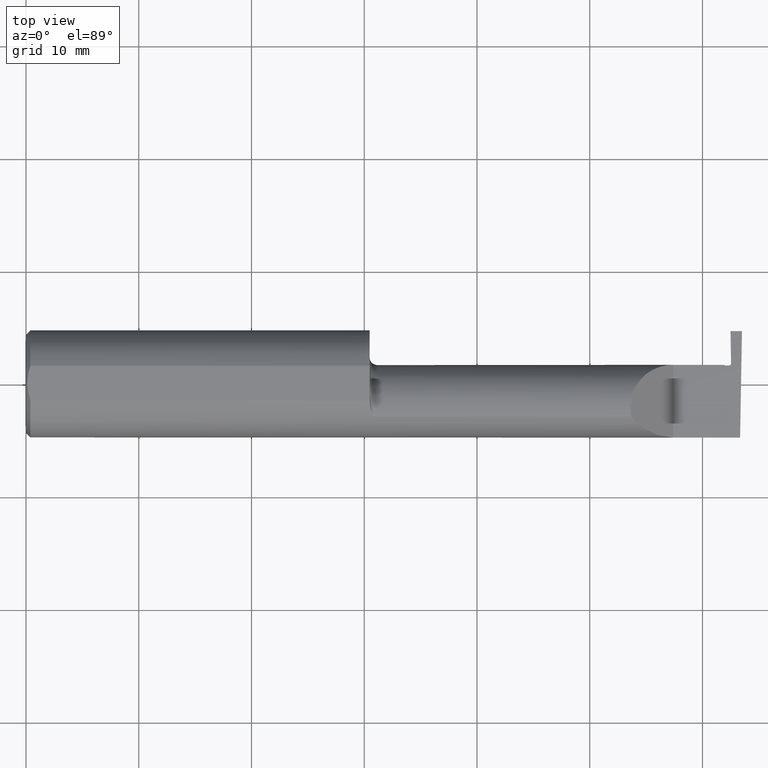
[diagram: clean part render]
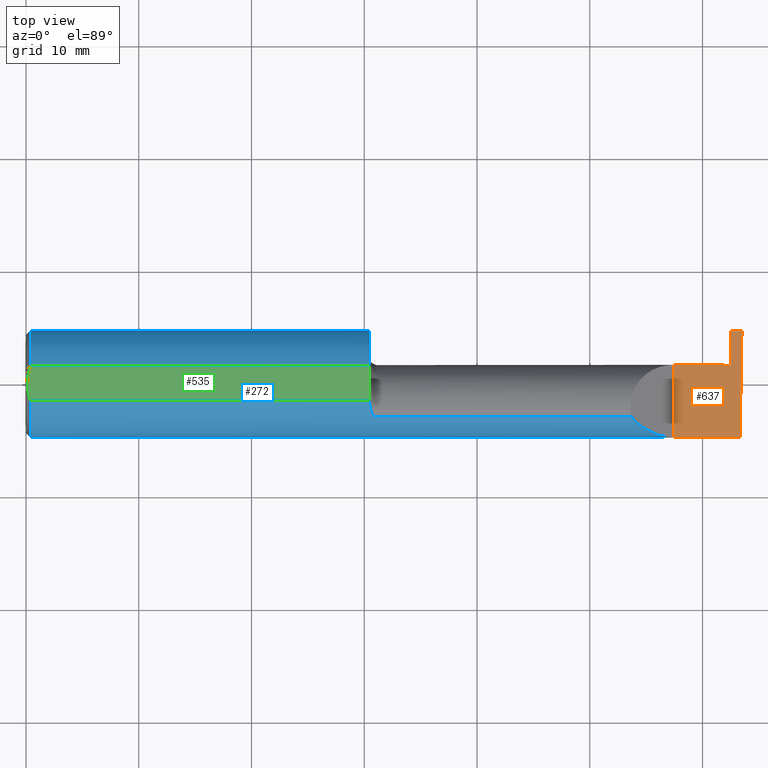
[diagram: same view with three faces highlighted in distinct colors, each labeled with its STEP entity id]
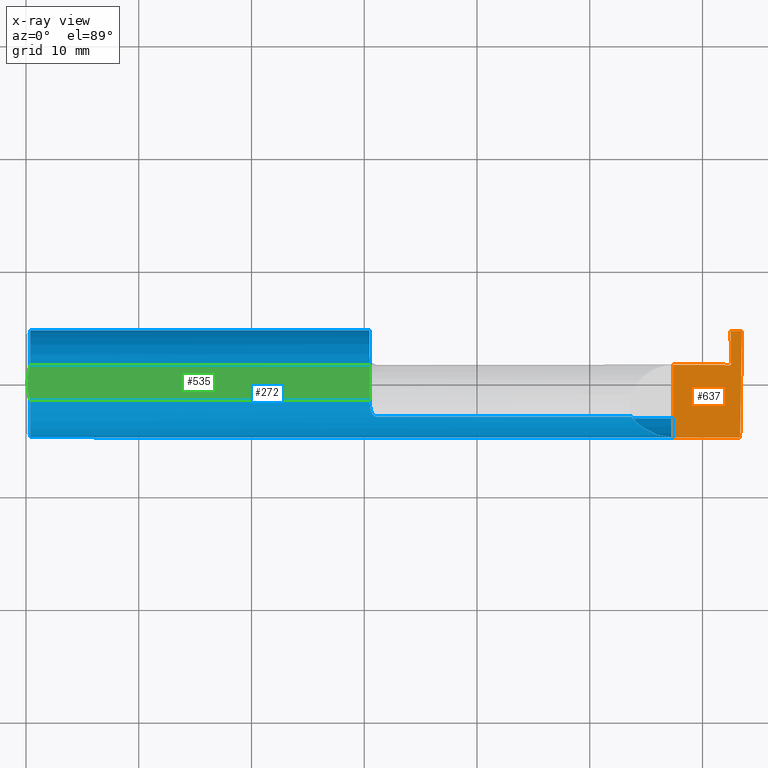
[diagram: x-ray of the same camera — body ghosted, the three highlighted faces saturated]
A machine part, top view with three faces highlighted in distinct colors.
The next image is the same camera in x-ray (body ghosted, the three faces saturated) — at least one of them is partly hidden behind the body in this view.
Their STEP definitions:

[orange] entity #637 — the highlighted planar face has unit normal (-0, 0, -1).
#2 = CARTESIAN_POINT ( 'NONE',  ( 2.461970289910105691, 0.07177216684492272736, -4.912318699649688234E-11 ) ) ;
#5 = B_SPLINE_CURVE_WITH_KNOTS ( 'NONE', 1,
 ( #380, #323 ),
 .UNSPECIFIED., .F., .F.,
 ( 2, 2 ),
 ( 0.000000000000000000, 0.0003802724437979160266 ),
 .UNSPECIFIED. ) ;
#18 = AXIS2_PLACEMENT_3D ( 'NONE', #775, #916, #706 ) ;
#24 = B_SPLINE_CURVE_WITH_KNOTS ( 'NONE', 1,
 ( #127, #640 ),
 .UNSPECIFIED., .F., .F.,
 ( 2, 2 ),
 ( 0.000000000000000000, 7.184204875932888475E-05 ),
 .UNSPECIFIED. ) ;
#30 = VECTOR ( 'NONE', #564, 39.37007874015748143 ) ;
#31 = EDGE_CURVE ( 'NONE', #96, #595, #5, .T. ) ;
#37 = CARTESIAN_POINT ( 'NONE',  ( 2.500000000000000000, 0.1846500000000000363, 0.000000000000000000 ) ) ;
#66 = CARTESIAN_POINT ( 'NONE',  ( 2.459128833457474350, 0.06464999999995868496, -4.734314724569174034E-11 ) ) ;
#75 = VERTEX_POINT ( 'NONE', #194 ) ;
#76 = LINE ( 'NONE', #525, #794 ) ;
#81 = EDGE_CURVE ( 'NONE', #75, #413, #262, .T. ) ;
#95 = DIRECTION ( 'NONE',  ( -1.000000000000000000, -0.000000000000000000, -0.000000000000000000 ) ) ;
#96 = VERTEX_POINT ( 'NONE', #274 ) ;
#104 = CARTESIAN_POINT ( 'NONE',  ( 2.399999999999999911, 0.1846500000000000363, -3.367778697655196529E-19 ) ) ;
#112 = VERTEX_POINT ( 'NONE', #480 ) ;
#117 = VERTEX_POINT ( 'NONE', #486 ) ;
#127 = CARTESIAN_POINT ( 'NONE',  ( 2.439999999988526902, 0.06464999999898690675, 1.642770376790358889E-10 ) ) ;
#149 = EDGE_CURVE ( 'NONE', #117, #620, #509, .T. ) ;
#150 = LINE ( 'NONE', #219, #722 ) ;
#180 = EDGE_LOOP ( 'NONE', ( #461, #488, #429, #777, #423, #445, #374, #438, #268 ) ) ;
#181 = EDGE_CURVE ( 'NONE', #595, #112, #24, .T. ) ;
#194 = CARTESIAN_POINT ( 'NONE',  ( 2.500000000000000000, 0.1846500000000000363, 0.000000000000000000 ) ) ;
#202 = CARTESIAN_POINT ( 'NONE',  ( 2.454971356043562647, 0.06464999999999881952, -4.269732031122091124E-11 ) ) ;
#219 = CARTESIAN_POINT ( 'NONE',  ( 1.199999999999999956, 0.06665000000000001479, 1.592040838891560081E-16 ) ) ;
#240 = CARTESIAN_POINT ( 'NONE',  ( 3.749399456654646757E-32, -0.1873499999999999888, 3.061616997868384127E-16 ) ) ;
#262 = LINE ( 'NONE', #37, #30 ) ;
#268 = ORIENTED_EDGE ( 'NONE', *, *, #782, .F. ) ;
#274 = CARTESIAN_POINT ( 'NONE',  ( 2.454971356043562647, 0.06464999999999881952, -4.269732031122091124E-11 ) ) ;
#305 = CARTESIAN_POINT ( 'NONE',  ( 2.260000000000000231, -0.1873499999999999888, 2.939152317953647352E-17 ) ) ;
#309 = CARTESIAN_POINT ( 'NONE',  ( 2.260000000000000231, 0.06665000000000002867, 2.939152317953647352E-17 ) ) ;
#323 = CARTESIAN_POINT ( 'NONE',  ( 2.439999999988526902, 0.06464999999898690675, 1.642770376790358889E-10 ) ) ;
#355 = CARTESIAN_POINT ( 'NONE',  ( 2.459999999986550723, 0.1846500000000000363, -3.367778697655196529E-19 ) ) ;
#372 = VECTOR ( 'NONE', #95, 39.37007874015748143 ) ;
#374 = ORIENTED_EDGE ( 'NONE', *, *, #181, .T. ) ;
#380 = CARTESIAN_POINT ( 'NONE',  ( 2.454971356043562647, 0.06464999999999881952, -4.269732031122091124E-11 ) ) ;
#413 = VERTEX_POINT ( 'NONE', #852 ) ;
#423 = ORIENTED_EDGE ( 'NONE', *, *, #449, .T. ) ;
#429 = ORIENTED_EDGE ( 'NONE', *, *, #922, .F. ) ;
#438 = ORIENTED_EDGE ( 'NONE', *, *, #731, .F. ) ;
#445 = ORIENTED_EDGE ( 'NONE', *, *, #31, .T. ) ;
#449 = EDGE_CURVE ( 'NONE', #620, #96, #650, .T. ) ;
#461 = ORIENTED_EDGE ( 'NONE', *, *, #582, .F. ) ;
#480 = CARTESIAN_POINT ( 'NONE',  ( 2.438000000000594358, 0.06664999999940504627, 8.765184870514689852E-18 ) ) ;
#486 = CARTESIAN_POINT ( 'NONE',  ( 2.459999999986550723, 0.1846500000000000363, -3.367778697655196529E-19 ) ) ;
#488 = ORIENTED_EDGE ( 'NONE', *, *, #81, .F. ) ;
#490 = CARTESIAN_POINT ( 'NONE',  ( 2.462042847893961550, 0.06761532263369839091, -4.817539708439409797E-11 ) ) ;
#500 = FACE_OUTER_BOUND ( 'NONE', #180, .T. ) ;
#509 = B_SPLINE_CURVE_WITH_KNOTS ( 'NONE', 1,
 ( #355, #756 ),
 .UNSPECIFIED., .F., .F.,
 ( 2, 2 ),
 ( 6.218240129447692272E-15, 0.002867533701424599627 ),
 .UNSPECIFIED. ) ;
#525 = CARTESIAN_POINT ( 'NONE',  ( 2.260000000000000231, -0.2000000000000000111, 2.939152317953647352E-17 ) ) ;
#564 = DIRECTION ( 'NONE',  ( -0.01745240643727703073, -0.9998476951563912696, 0.000000000000000000 ) ) ;
#582 = EDGE_CURVE ( 'NONE', #413, #786, #815, .T. ) ;
#584 = DIRECTION ( 'NONE',  ( 1.000000000000000000, 1.360482068557899661E-17, 0.000000000000000000 ) ) ;
#595 = VERTEX_POINT ( 'NONE', #836 ) ;
#620 = VERTEX_POINT ( 'NONE', #2 ) ;
#637 = ADVANCED_FACE ( 'NONE', ( #500 ), #859, .F. ) ;
#640 = CARTESIAN_POINT ( 'NONE',  ( 2.438000000000594358, 0.06664999999940504627, 8.765184870514689852E-18 ) ) ;
#642 = CARTESIAN_POINT ( 'NONE',  ( 2.461970289910105691, 0.07177216684492272736, -4.912318699649688234E-11 ) ) ;
#650 =( BOUNDED_CURVE ( )  B_SPLINE_CURVE ( 3, ( #642, #490, #66, #202 ),
 .UNSPECIFIED., .F., .T. ) 
 B_SPLINE_CURVE_WITH_KNOTS ( ( 4, 4 ),
 ( 4.336808689942018699E-19, 0.0002808519284762788643 ),
 .UNSPECIFIED. ) 
 CURVE ( )  GEOMETRIC_REPRESENTATION_ITEM ( )  RATIONAL_B_SPLINE_CURVE ( ( 1.000000000000000000, 0.8006061761999015980, 0.8006061761999015980, 1.000000000000000000 ) ) 
 REPRESENTATION_ITEM ( '' )  );
#674 = DIRECTION ( 'NONE',  ( 1.000000000000000000, -0.000000000000000000, -0.000000000000000000 ) ) ;
#675 = VECTOR ( 'NONE', #674, 39.37007874015748143 ) ;
#706 = DIRECTION ( 'NONE',  ( -1.000000000000000000, 0.000000000000000000, 1.224646799147353700E-16 ) ) ;
#722 = VECTOR ( 'NONE', #584, 39.37007874015748143 ) ;
#731 = EDGE_CURVE ( 'NONE', #856, #112, #150, .T. ) ;
#732 = DIRECTION ( 'NONE',  ( -0.000000000000000000, 1.000000000000000000, -0.000000000000000000 ) ) ;
#756 = CARTESIAN_POINT ( 'NONE',  ( 2.461970289910105691, 0.07177216684492272736, -4.912318699649688234E-11 ) ) ;
#757 = LINE ( 'NONE', #104, #675 ) ;
#775 = CARTESIAN_POINT ( 'NONE',  ( 2.500000000000000000, -0.2000000000000000111, 0.000000000000000000 ) ) ;
#777 = ORIENTED_EDGE ( 'NONE', *, *, #149, .T. ) ;
#782 = EDGE_CURVE ( 'NONE', #786, #856, #76, .T. ) ;
#786 = VERTEX_POINT ( 'NONE', #305 ) ;
#794 = VECTOR ( 'NONE', #732, 39.37007874015748143 ) ;
#815 = LINE ( 'NONE', #240, #372 ) ;
#836 = CARTESIAN_POINT ( 'NONE',  ( 2.439999999988526902, 0.06464999999898690675, 1.642770376790358889E-10 ) ) ;
#852 = CARTESIAN_POINT ( 'NONE',  ( 2.493506715846705468, -0.1873499999999999888, 0.000000000000000000 ) ) ;
#856 = VERTEX_POINT ( 'NONE', #309 ) ;
#859 = PLANE ( 'NONE',  #18 ) ;
#916 = DIRECTION ( 'NONE',  ( -1.224646799147353700E-16, 0.000000000000000000, -1.000000000000000000 ) ) ;
#922 = EDGE_CURVE ( 'NONE', #117, #75, #757, .T. ) ;

[blue] entity #272 — the highlighted cylindrical surface (partial cylindrical patch) has radius 4.7587 mm, axis along (-1, -0, -0).
#3 = DIRECTION ( 'NONE',  ( -1.000000000000000000, -0.000000000000000000, -0.000000000000000000 ) ) ;
#15 = CARTESIAN_POINT ( 'NONE',  ( 2.462366680899649385, -0.1203677650156599055, -0.1435703392140126600 ) ) ;
#17 = EDGE_CURVE ( 'NONE', #844, #48, #339, .T. ) ;
#29 = DIRECTION ( 'NONE',  ( 1.000000000000000000, 1.360482068557899815E-17, 0.000000000000000000 ) ) ;
#36 = CARTESIAN_POINT ( 'NONE',  ( 2.450629942783476345, -0.1202905323673100629, -0.1436322050335129275 ) ) ;
#39 = CARTESIAN_POINT ( 'NONE',  ( 1.200358271039144054, -0.07873626113568087115, -0.1700887912276896063 ) ) ;
#41 = DIRECTION ( 'NONE',  ( 1.000000000000000000, 1.360482068557899815E-17, 0.000000000000000000 ) ) ;
#48 = VERTEX_POINT ( 'NONE', #891 ) ;
#52 = ORIENTED_EDGE ( 'NONE', *, *, #332, .T. ) ;
#55 = CARTESIAN_POINT ( 'NONE',  ( 2.113883229301070532, -0.1172600179964006228, 0.1461167706989303650 ) ) ;
#56 = CIRCLE ( 'NONE', #841, 0.1873499999999999888 ) ;
#64 = CARTESIAN_POINT ( 'NONE',  ( 1.208475602106621416, -0.1064978748893407740, 0.1542035505680382501 ) ) ;
#69 = FACE_OUTER_BOUND ( 'NONE', #608, .T. ) ;
#77 = AXIS2_PLACEMENT_3D ( 'NONE', #677, #41, #337 ) ;
#83 = CARTESIAN_POINT ( 'NONE',  ( 1.201829077486400443, -0.08839624499054661577, 0.1652742498708036911 ) ) ;
#85 = B_SPLINE_CURVE_WITH_KNOTS ( 'NONE', 3,
 ( #534, #460, #550, #314, #538, #759, #36, #602, #750, #319 ),
 .UNSPECIFIED., .F., .F.,
 ( 4, 3, 3, 4 ),
 ( 1.393189244890212689E-17, 9.519312269084809002E-05, 0.0002379828151243755215, 0.0003807725157309796568 ),
 .UNSPECIFIED. ) ;
#87 = CARTESIAN_POINT ( 'NONE',  ( 1.225000000000000089, -0.1172600179964007477, 0.1461167706989302539 ) ) ;
#88 = VECTOR ( 'NONE', #909, 39.37007874015748143 ) ;
#93 = CARTESIAN_POINT ( 'NONE',  ( 1.206304331342287650, -0.1022198306720692590, -0.1570962426853817206 ) ) ;
#95 = DIRECTION ( 'NONE',  ( -1.000000000000000000, -0.000000000000000000, -0.000000000000000000 ) ) ;
#97 = EDGE_CURVE ( 'NONE', #263, #413, #614, .T. ) ;
#105 = CARTESIAN_POINT ( 'NONE',  ( 2.113883229301070532, -0.1172600179964006228, 0.1461167706989303650 ) ) ;
#110 = DIRECTION ( 'NONE',  ( -1.000000000000000000, -0.000000000000000000, -0.000000000000000000 ) ) ;
#122 = CARTESIAN_POINT ( 'NONE',  ( 0.01499999999999999944, 0.000000000000000000, -0.1873499999999999888 ) ) ;
#134 = CARTESIAN_POINT ( 'NONE',  ( 0.01499999999999999944, -0.06039039658753697637, 0.1773499999999999799 ) ) ;
#137 = CARTESIAN_POINT ( 'NONE',  ( 1.222161949849308371, -0.1172600179964064654, 0.1461167706989257853 ) ) ;
#138 = ORIENTED_EDGE ( 'NONE', *, *, #798, .F. ) ;
#142 = VERTEX_POINT ( 'NONE', #267 ) ;
#148 = ORIENTED_EDGE ( 'NONE', *, *, #442, .F. ) ;
#152 = ORIENTED_EDGE ( 'NONE', *, *, #660, .F. ) ;
#154 =( BOUNDED_CURVE ( )  B_SPLINE_CURVE ( 3, ( #230, #526, #671, #105 ),
 .UNSPECIFIED., .F., .F. ) 
 B_SPLINE_CURVE_WITH_KNOTS ( ( 4, 4 ),
 ( 4.712388980384688786, 5.606916381293136631 ),
 .UNSPECIFIED. ) 
 CURVE ( )  GEOMETRIC_REPRESENTATION_ITEM ( )  RATIONAL_B_SPLINE_CURVE ( ( 1.000000000000000000, 0.9344226172588802060, 0.9344226172588802060, 1.000000000000000000 ) ) 
 REPRESENTATION_ITEM ( '' )  );
#156 = CARTESIAN_POINT ( 'NONE',  ( 1.200353553376445115, -0.07868116735658682581, 0.1701139256562800572 ) ) ;
#159 = DIRECTION ( 'NONE',  ( 1.000000000000000000, 1.360482068557899661E-17, 0.000000000000000000 ) ) ;
#160 = CIRCLE ( 'NONE', #696, 0.1873499999999999888 ) ;
#161 = VERTEX_POINT ( 'NONE', #122 ) ;
#171 = DIRECTION ( 'NONE',  ( 0.000000000000000000, 0.000000000000000000, 1.000000000000000000 ) ) ;
#197 = CARTESIAN_POINT ( 'NONE',  ( 1.840000000000000080, -0.1172600179964007477, -0.1461167706989302817 ) ) ;
#200 = CARTESIAN_POINT ( 'NONE',  ( 2.491063981715931686, -0.1623470442677541759, -0.1099340280425337851 ) ) ;
#203 = DIRECTION ( 'NONE',  ( -1.000000000000000000, -1.360482068557899661E-17, -0.000000000000000000 ) ) ;
#204 = CARTESIAN_POINT ( 'NONE',  ( 1.213163223656403167, -0.1119926267047279822, 0.1502091925606061362 ) ) ;
#210 = CARTESIAN_POINT ( 'NONE',  ( 1.206287624083520305, -0.1021858045380146796, 0.1571187174372873641 ) ) ;
#212 = EDGE_CURVE ( 'NONE', #693, #407, #291, .T. ) ;
#214 = LINE ( 'NONE', #437, #558 ) ;
#222 = CARTESIAN_POINT ( 'NONE',  ( 2.459970630616845177, -0.1208515442419755559, -0.1431604929941561188 ) ) ;
#227 = CARTESIAN_POINT ( 'NONE',  ( 1.219481469043492083, -0.1163560528186168286, 0.1468472430636321713 ) ) ;
#230 = CARTESIAN_POINT ( 'NONE',  ( 2.260000000000000231, -0.1873499999999999888, 2.939152317953647352E-17 ) ) ;
#240 = CARTESIAN_POINT ( 'NONE',  ( 3.749399456654646757E-32, -0.1873499999999999888, 3.061616997868384127E-16 ) ) ;
#247 = EDGE_CURVE ( 'NONE', #407, #497, #736, .T. ) ;
#250 = CARTESIAN_POINT ( 'NONE',  ( 1.199999999999999956, -0.07368234487347198602, -0.1723418180300747837 ) ) ;
#258 = CARTESIAN_POINT ( 'NONE',  ( 1.199999999999999956, -0.06851976604679065053, -0.1743704796142198643 ) ) ;
#263 = VERTEX_POINT ( 'NONE', #522 ) ;
#267 = CARTESIAN_POINT ( 'NONE',  ( 2.459970630616845177, -0.1208515442419755559, -0.1431604929941561188 ) ) ;
#269 = VECTOR ( 'NONE', #360, 39.37007874015748143 ) ;
#272 = ADVANCED_FACE ( 'NONE', ( #69 ), #806, .T. ) ;
#284 = CARTESIAN_POINT ( 'NONE',  ( 0.000000000000000000, -0.06039039658753697637, 0.1773499999999999799 ) ) ;
#288 = ORIENTED_EDGE ( 'NONE', *, *, #752, .F. ) ;
#291 = B_SPLINE_CURVE_WITH_KNOTS ( 'NONE', 3,
 ( #570, #310, #156, #83, #593, #210, #64, #204, #785, #227, #137, #87 ),
 .UNSPECIFIED., .F., .F.,
 ( 4, 2, 2, 2, 2, 4 ),
 ( 4.423516731080792778E-05, 0.0004615475116586735234, 0.0008788598560065390445, 0.001296172200354404674, 0.001504828372528336676, 0.001713484544702268677 ),
 .UNSPECIFIED. ) ;
#294 = ORIENTED_EDGE ( 'NONE', *, *, #17, .F. ) ;
#298 = ORIENTED_EDGE ( 'NONE', *, *, #97, .T. ) ;
#300 = CARTESIAN_POINT ( 'NONE',  ( 1.199999999999999956, -0.06851976604679065053, -0.1743704796142198643 ) ) ;
#301 = ORIENTED_EDGE ( 'NONE', *, *, #685, .F. ) ;
#302 = CARTESIAN_POINT ( 'NONE',  ( 2.443647039190288250, -0.1172600179964006645, -0.1461167706989303094 ) ) ;
#305 = CARTESIAN_POINT ( 'NONE',  ( 2.260000000000000231, -0.1873499999999999888, 2.939152317953647352E-17 ) ) ;
#310 = CARTESIAN_POINT ( 'NONE',  ( 1.199999999999999956, -0.07367581953296709063, 0.1723443821957855171 ) ) ;
#314 = CARTESIAN_POINT ( 'NONE',  ( 2.456234333134069470, -0.1206275801653883678, -0.1433492567244169513 ) ) ;
#319 = CARTESIAN_POINT ( 'NONE',  ( 2.445025619349392443, -0.1199521637387518658, -0.1439149085897346303 ) ) ;
#329 = CARTESIAN_POINT ( 'NONE',  ( 1.215028532764138580, -0.1137241120808237527, -0.1488947809299402125 ) ) ;
#331 = CARTESIAN_POINT ( 'NONE',  ( 0.01499999999999999944, 0.000000000000000000, 0.000000000000000000 ) ) ;
#332 = EDGE_CURVE ( 'NONE', #786, #497, #154, .T. ) ;
#337 = DIRECTION ( 'NONE',  ( 0.000000000000000000, 1.000000000000000000, 0.000000000000000000 ) ) ;
#339 = CIRCLE ( 'NONE', #383, 0.1873499999999999888 ) ;
#352 = CARTESIAN_POINT ( 'NONE',  ( 2.444107737563714355, -0.1181638109592831054, -0.1453914687463503108 ) ) ;
#360 = DIRECTION ( 'NONE',  ( 1.000000000000000000, 0.000000000000000000, 0.000000000000000000 ) ) ;
#361 = EDGE_CURVE ( 'NONE', #48, #718, #925, .T. ) ;
#363 = ORIENTED_EDGE ( 'NONE', *, *, #590, .F. ) ;
#371 = VERTEX_POINT ( 'NONE', #134 ) ;
#372 = VECTOR ( 'NONE', #95, 39.37007874015748143 ) ;
#383 = AXIS2_PLACEMENT_3D ( 'NONE', #741, #29, #737 ) ;
#407 = VERTEX_POINT ( 'NONE', #709 ) ;
#410 = EDGE_CURVE ( 'NONE', #457, #746, #453, .T. ) ;
#413 = VERTEX_POINT ( 'NONE', #852 ) ;
#430 = AXIS2_PLACEMENT_3D ( 'NONE', #597, #3, #455 ) ;
#437 = CARTESIAN_POINT ( 'NONE',  ( 1.840000000000000080, -0.1172600179964007477, -0.1461167706989302817 ) ) ;
#442 = EDGE_CURVE ( 'NONE', #746, #871, #783, .T. ) ;
#444 = CARTESIAN_POINT ( 'NONE',  ( 0.01499999999999756042, 0.06039039658754215278, 0.1773499999999999799 ) ) ;
#446 = CARTESIAN_POINT ( 'NONE',  ( 2.461215914213772393, -0.1209260915574840167, -0.1430975625165511744 ) ) ;
#447 = CARTESIAN_POINT ( 'NONE',  ( 1.840000000000000080, -0.1172600179964007477, 0.1461167706989302817 ) ) ;
#453 = B_SPLINE_CURVE_WITH_KNOTS ( 'NONE', 3,
 ( #700, #846, #352, #555 ),
 .UNSPECIFIED., .F., .F.,
 ( 4, 4 ),
 ( 4.336808689942017736E-18, 9.502270576916174011E-05 ),
 .UNSPECIFIED. ) ;
#454 = CARTESIAN_POINT ( 'NONE',  ( 1.219511795768554840, -0.1163687266324237302, -0.1468371510166787408 ) ) ;
#455 = DIRECTION ( 'NONE',  ( 0.000000000000000000, 0.000000000000000000, 1.000000000000000000 ) ) ;
#457 = VERTEX_POINT ( 'NONE', #774 ) ;
#460 = CARTESIAN_POINT ( 'NONE',  ( 2.458725193120793850, -0.1207769875284508965, -0.1432234314052680813 ) ) ;
#481 = VERTEX_POINT ( 'NONE', #572 ) ;
#487 = CIRCLE ( 'NONE', #77, 0.1873499999999999888 ) ;
#497 = VERTEX_POINT ( 'NONE', #55 ) ;
#503 = VECTOR ( 'NONE', #159, 39.37007874015748143 ) ;
#516 = CARTESIAN_POINT ( 'NONE',  ( 1.199999999999999956, -0.06039039658753695555, 0.1773499999999999799 ) ) ;
#518 = ORIENTED_EDGE ( 'NONE', *, *, #361, .F. ) ;
#519 = EDGE_CURVE ( 'NONE', #142, #457, #85, .T. ) ;
#522 = CARTESIAN_POINT ( 'NONE',  ( 2.490903355898019367, -0.1172600179964007477, -0.1461167706989302817 ) ) ;
#524 = EDGE_CURVE ( 'NONE', #161, #371, #160, .T. ) ;
#526 = CARTESIAN_POINT ( 'NONE',  ( 2.202189699843949633, -0.1873500000000000998, 0.05781030015605104211 ) ) ;
#534 = CARTESIAN_POINT ( 'NONE',  ( 2.459970630616845177, -0.1208515442419755559, -0.1431604929941561188 ) ) ;
#538 = CARTESIAN_POINT ( 'NONE',  ( 2.454366191791765850, -0.1205154511844502840, -0.1434436126209597262 ) ) ;
#545 = CARTESIAN_POINT ( 'NONE',  ( 2.490903355898019367, -0.1172600179964007477, -0.1461167706989302817 ) ) ;
#550 = CARTESIAN_POINT ( 'NONE',  ( 2.457479760627314214, -0.1207023328152481145, -0.1432863527968376849 ) ) ;
#553 = ORIENTED_EDGE ( 'NONE', *, *, #247, .F. ) ;
#555 = CARTESIAN_POINT ( 'NONE',  ( 2.443647039190288250, -0.1172600179964006645, -0.1461167706989303094 ) ) ;
#558 = VECTOR ( 'NONE', #203, 39.37007874015748143 ) ;
#561 = CARTESIAN_POINT ( 'NONE',  ( 0.000000000000000000, 0.06039039658753697637, 0.1773499999999999799 ) ) ;
#570 = CARTESIAN_POINT ( 'NONE',  ( 1.199999999999999956, -0.06851976604679065053, 0.1743704796142198643 ) ) ;
#572 = CARTESIAN_POINT ( 'NONE',  ( 2.465157082534984223, -0.1172600179964006506, -0.1461167706989302539 ) ) ;
#582 = EDGE_CURVE ( 'NONE', #413, #786, #815, .T. ) ;
#588 = CARTESIAN_POINT ( 'NONE',  ( 2.464039528730172179, -0.1189754524817066561, -0.1447262341929235197 ) ) ;
#590 = EDGE_CURVE ( 'NONE', #799, #693, #487, .T. ) ;
#593 = CARTESIAN_POINT ( 'NONE',  ( 1.202945243422983035, -0.09312071749437435264, 0.1626553472577904891 ) ) ;
#596 = DIRECTION ( 'NONE',  ( 0.000000000000000000, 0.000000000000000000, 1.000000000000000000 ) ) ;
#597 = CARTESIAN_POINT ( 'NONE',  ( 0.000000000000000000, 0.000000000000000000, 0.000000000000000000 ) ) ;
#602 = CARTESIAN_POINT ( 'NONE',  ( 2.448761823782266145, -0.1201779628840784486, -0.1437264808476527989 ) ) ;
#605 = CARTESIAN_POINT ( 'NONE',  ( 1.222174967710399462, -0.1172600179964008310, -0.1461167706989301707 ) ) ;
#608 = EDGE_LOOP ( 'NONE', ( #152, #298, #896, #52, #553, #761, #363, #301, #821, #138, #518, #294, #850, #148, #838, #678, #288 ) ) ;
#614 =( BOUNDED_CURVE ( )  B_SPLINE_CURVE ( 3, ( #545, #200, #832, #917 ),
 .UNSPECIFIED., .F., .T. ) 
 B_SPLINE_CURVE_WITH_KNOTS ( ( 4, 4 ),
 ( 0.08839520912052888091, 0.9829226100289757406 ),
 .UNSPECIFIED. ) 
 CURVE ( )  GEOMETRIC_REPRESENTATION_ITEM ( )  RATIONAL_B_SPLINE_CURVE ( ( 1.000000000000000000, 0.9344226172588803170, 0.9344226172588803170, 1.000000000000000000 ) ) 
 REPRESENTATION_ITEM ( '' )  );
#615 = CARTESIAN_POINT ( 'NONE',  ( 1.201843912362377642, -0.08846956905169099661, -0.1652353808078971531 ) ) ;
#643 = CARTESIAN_POINT ( 'NONE',  ( 1.199999999999999956, -0.06851976604679065053, 0.1743704796142198643 ) ) ;
#660 = EDGE_CURVE ( 'NONE', #263, #481, #214, .T. ) ;
#671 = CARTESIAN_POINT ( 'NONE',  ( 2.150065971957467070, -0.1623470442677541759, 0.1099340280425336880 ) ) ;
#677 = CARTESIAN_POINT ( 'NONE',  ( 1.199999999999999956, 0.000000000000000000, 0.000000000000000000 ) ) ;
#678 = ORIENTED_EDGE ( 'NONE', *, *, #519, .F. ) ;
#685 = EDGE_CURVE ( 'NONE', #371, #799, #710, .T. ) ;
#689 = CARTESIAN_POINT ( 'NONE',  ( 1.202960551809340473, -0.09317341542745757876, -0.1626248379125196375 ) ) ;
#693 = VERTEX_POINT ( 'NONE', #643 ) ;
#696 = AXIS2_PLACEMENT_3D ( 'NONE', #331, #110, #171 ) ;
#700 = CARTESIAN_POINT ( 'NONE',  ( 2.445025619349392443, -0.1199521637387518658, -0.1439149085897346303 ) ) ;
#709 = CARTESIAN_POINT ( 'NONE',  ( 1.225000000000000089, -0.1172600179964007477, 0.1461167706989302539 ) ) ;
#710 = LINE ( 'NONE', #284, #269 ) ;
#714 = DIRECTION ( 'NONE',  ( -1.000000000000000000, -1.360482068557899661E-17, -0.000000000000000000 ) ) ;
#718 = VERTEX_POINT ( 'NONE', #444 ) ;
#721 = CARTESIAN_POINT ( 'NONE',  ( 0.01499999999999999944, 0.000000000000000000, 0.000000000000000000 ) ) ;
#736 = LINE ( 'NONE', #447, #503 ) ;
#737 = DIRECTION ( 'NONE',  ( 0.000000000000000000, 1.000000000000000000, 0.000000000000000000 ) ) ;
#741 = CARTESIAN_POINT ( 'NONE',  ( 1.199999999999999956, 0.000000000000000000, 0.000000000000000000 ) ) ;
#743 = CARTESIAN_POINT ( 'NONE',  ( 1.213203859946833996, -0.1120371980050640370, -0.1501764597936557921 ) ) ;
#746 = VERTEX_POINT ( 'NONE', #302 ) ;
#750 = CARTESIAN_POINT ( 'NONE',  ( 2.446893715974042927, -0.1200651732627701640, -0.1438207158680636089 ) ) ;
#752 = EDGE_CURVE ( 'NONE', #481, #142, #765, .T. ) ;
#759 = CARTESIAN_POINT ( 'NONE',  ( 2.452498061677761410, -0.1204031018440985673, -0.1435379292247690453 ) ) ;
#761 = ORIENTED_EDGE ( 'NONE', *, *, #212, .F. ) ;
#765 = B_SPLINE_CURVE_WITH_KNOTS ( 'NONE', 3,
 ( #793, #805, #588, #15, #446, #222 ),
 .UNSPECIFIED., .F., .F.,
 ( 4, 2, 4 ),
 ( 0.0002880341540416807245, 0.0003798726319037402824, 0.0004717111097657998402 ),
 .UNSPECIFIED. ) ;
#774 = CARTESIAN_POINT ( 'NONE',  ( 2.445025619349392443, -0.1199521637387518658, -0.1439149085897346303 ) ) ;
#783 = LINE ( 'NONE', #197, #812 ) ;
#785 = CARTESIAN_POINT ( 'NONE',  ( 1.215004157323697376, -0.1137044537483318518, 0.1489098419202427026 ) ) ;
#786 = VERTEX_POINT ( 'NONE', #305 ) ;
#789 = B_SPLINE_CURVE_WITH_KNOTS ( 'NONE', 3,
 ( #822, #605, #454, #329, #743, #888, #93, #689, #615, #39, #250, #258 ),
 .UNSPECIFIED., .F., .F.,
 ( 4, 2, 2, 2, 2, 4 ),
 ( 1.967976973692733563E-07, 0.0002120314145722277603, 0.0004238660314470862108, 0.0008475352651968031661, 0.001271204498946520338, 0.001694873732696237185 ),
 .UNSPECIFIED. ) ;
#793 = CARTESIAN_POINT ( 'NONE',  ( 2.465157082534984223, -0.1172600179964006506, -0.1461167706989302539 ) ) ;
#798 = EDGE_CURVE ( 'NONE', #718, #161, #56, .T. ) ;
#799 = VERTEX_POINT ( 'NONE', #516 ) ;
#805 = CARTESIAN_POINT ( 'NONE',  ( 2.464654264849314380, -0.1181371930991264863, -0.1454128298176775302 ) ) ;
#806 = CYLINDRICAL_SURFACE ( 'NONE', #430, 0.1873499999999999888 ) ;
#812 = VECTOR ( 'NONE', #714, 39.37007874015748143 ) ;
#815 = LINE ( 'NONE', #240, #372 ) ;
#821 = ORIENTED_EDGE ( 'NONE', *, *, #524, .F. ) ;
#822 = CARTESIAN_POINT ( 'NONE',  ( 1.225000000000000089, -0.1172600179964006784, -0.1461167706989302817 ) ) ;
#832 = CARTESIAN_POINT ( 'NONE',  ( 2.491992669264299742, -0.1873499999999999888, -0.05781030015605114619 ) ) ;
#834 = CARTESIAN_POINT ( 'NONE',  ( 1.225000000000000089, -0.1172600179964006784, -0.1461167706989302817 ) ) ;
#838 = ORIENTED_EDGE ( 'NONE', *, *, #410, .F. ) ;
#841 = AXIS2_PLACEMENT_3D ( 'NONE', #721, #872, #596 ) ;
#844 = VERTEX_POINT ( 'NONE', #300 ) ;
#846 = CARTESIAN_POINT ( 'NONE',  ( 2.444567321465656917, -0.1190612593471627040, -0.1446574717508600505 ) ) ;
#850 = ORIENTED_EDGE ( 'NONE', *, *, #927, .F. ) ;
#852 = CARTESIAN_POINT ( 'NONE',  ( 2.493506715846705468, -0.1873499999999999888, 0.000000000000000000 ) ) ;
#871 = VERTEX_POINT ( 'NONE', #834 ) ;
#872 = DIRECTION ( 'NONE',  ( -1.000000000000000000, -0.000000000000000000, -0.000000000000000000 ) ) ;
#888 = CARTESIAN_POINT ( 'NONE',  ( 1.208439486659306672, -0.1064616213911159653, -0.1542305641651499359 ) ) ;
#891 = CARTESIAN_POINT ( 'NONE',  ( 1.199999999999999956, 0.06039039658754216666, 0.1773499999999999799 ) ) ;
#896 = ORIENTED_EDGE ( 'NONE', *, *, #582, .T. ) ;
#909 = DIRECTION ( 'NONE',  ( -1.000000000000000000, -0.000000000000000000, -0.000000000000000000 ) ) ;
#917 = CARTESIAN_POINT ( 'NONE',  ( 2.493506715846705468, -0.1873499999999999888, 0.000000000000000000 ) ) ;
#925 = LINE ( 'NONE', #561, #88 ) ;
#927 = EDGE_CURVE ( 'NONE', #871, #844, #789, .T. ) ;

[green] entity #535 — the highlighted planar face has unit normal (0, -0, 1).
#26 = VECTOR ( 'NONE', #226, 39.37007874015748143 ) ;
#48 = VERTEX_POINT ( 'NONE', #891 ) ;
#73 = CARTESIAN_POINT ( 'NONE',  ( 1.199999999999999956, -0.1873500000000000443, 0.1773499999999999799 ) ) ;
#88 = VECTOR ( 'NONE', #909, 39.37007874015748143 ) ;
#134 = CARTESIAN_POINT ( 'NONE',  ( 0.01499999999999999944, -0.06039039658753697637, 0.1773499999999999799 ) ) ;
#167 = VERTEX_POINT ( 'NONE', #417 ) ;
#188 = CARTESIAN_POINT ( 'NONE',  ( 0.004999999999999835305, 2.941982542510190671E-17, 0.1773499999999999799 ) ) ;
#215 = EDGE_LOOP ( 'NONE', ( #225, #730, #628, #772, #766 ) ) ;
#225 = ORIENTED_EDGE ( 'NONE', *, *, #685, .T. ) ;
#226 = DIRECTION ( 'NONE',  ( -1.360482068557899661E-17, 1.000000000000000000, 0.000000000000000000 ) ) ;
#246 = CARTESIAN_POINT ( 'NONE',  ( 0.005896899252109314912, -0.02043863390046160924, 0.1773500000000000354 ) ) ;
#260 = DIRECTION ( 'NONE',  ( 1.000000000000000000, 0.000000000000000000, -0.000000000000000000 ) ) ;
#269 = VECTOR ( 'NONE', #360, 39.37007874015748143 ) ;
#284 = CARTESIAN_POINT ( 'NONE',  ( 0.000000000000000000, -0.06039039658753697637, 0.1773499999999999799 ) ) ;
#357 = B_SPLINE_CURVE_WITH_KNOTS ( 'NONE', 3,
 ( #768, #920, #359, #648, #420, #426 ),
 .UNSPECIFIED., .F., .F.,
 ( 4, 2, 4 ),
 ( 0.004207325536406422359, 0.004979129323161655095, 0.005750933109916887831 ),
 .UNSPECIFIED. ) ;
#359 = CARTESIAN_POINT ( 'NONE',  ( 0.009346310357820472939, 0.04072930668827419443, 0.1773500000000000354 ) ) ;
#360 = DIRECTION ( 'NONE',  ( 1.000000000000000000, 0.000000000000000000, 0.000000000000000000 ) ) ;
#361 = EDGE_CURVE ( 'NONE', #48, #718, #925, .T. ) ;
#371 = VERTEX_POINT ( 'NONE', #134 ) ;
#409 = PLANE ( 'NONE',  #412 ) ;
#412 = AXIS2_PLACEMENT_3D ( 'NONE', #465, #824, #260 ) ;
#417 = CARTESIAN_POINT ( 'NONE',  ( 0.004999999999999835305, 2.941982542510190671E-17, 0.1773499999999999799 ) ) ;
#420 = CARTESIAN_POINT ( 'NONE',  ( 0.004999999999999839642, 0.01027925662263861305, 0.1773499999999999799 ) ) ;
#426 = CARTESIAN_POINT ( 'NONE',  ( 0.004999999999999835305, 2.941982542510190671E-17, 0.1773499999999999799 ) ) ;
#441 = LINE ( 'NONE', #73, #26 ) ;
#444 = CARTESIAN_POINT ( 'NONE',  ( 0.01499999999999756042, 0.06039039658754215278, 0.1773499999999999799 ) ) ;
#465 = CARTESIAN_POINT ( 'NONE',  ( 2.500000000000000000, -0.1873500000000000165, 0.1773499999999999799 ) ) ;
#470 = CARTESIAN_POINT ( 'NONE',  ( 0.009318557230853204490, -0.04061090184993776386, 0.1773499999999999799 ) ) ;
#478 = EDGE_CURVE ( 'NONE', #718, #167, #357, .T. ) ;
#479 = CARTESIAN_POINT ( 'NONE',  ( 0.01499999999999999944, -0.06039039658753697637, 0.1773499999999999799 ) ) ;
#516 = CARTESIAN_POINT ( 'NONE',  ( 1.199999999999999956, -0.06039039658753695555, 0.1773499999999999799 ) ) ;
#520 = B_SPLINE_CURVE_WITH_KNOTS ( 'NONE', 3,
 ( #188, #890, #246, #470, #755, #479 ),
 .UNSPECIFIED., .F., .F.,
 ( 4, 2, 4 ),
 ( 0.005750933109916887831, 0.006521788775031543001, 0.007292644440146199038 ),
 .UNSPECIFIED. ) ;
#535 = ADVANCED_FACE ( 'NONE', ( #819 ), #409, .T. ) ;
#561 = CARTESIAN_POINT ( 'NONE',  ( 0.000000000000000000, 0.06039039658753697637, 0.1773499999999999799 ) ) ;
#604 = EDGE_CURVE ( 'NONE', #167, #371, #520, .T. ) ;
#628 = ORIENTED_EDGE ( 'NONE', *, *, #361, .T. ) ;
#648 = CARTESIAN_POINT ( 'NONE',  ( 0.005916828623699125177, 0.02060071390057613763, 0.1773499999999999799 ) ) ;
#685 = EDGE_CURVE ( 'NONE', #371, #799, #710, .T. ) ;
#710 = LINE ( 'NONE', #284, #269 ) ;
#718 = VERTEX_POINT ( 'NONE', #444 ) ;
#730 = ORIENTED_EDGE ( 'NONE', *, *, #826, .T. ) ;
#755 = CARTESIAN_POINT ( 'NONE',  ( 0.01186375298701897348, -0.05066077215909271098, 0.1773499999999999799 ) ) ;
#766 = ORIENTED_EDGE ( 'NONE', *, *, #604, .T. ) ;
#768 = CARTESIAN_POINT ( 'NONE',  ( 0.01499999999999756042, 0.06039039658754215278, 0.1773499999999999799 ) ) ;
#772 = ORIENTED_EDGE ( 'NONE', *, *, #478, .T. ) ;
#799 = VERTEX_POINT ( 'NONE', #516 ) ;
#819 = FACE_OUTER_BOUND ( 'NONE', #215, .T. ) ;
#824 = DIRECTION ( 'NONE',  ( 0.000000000000000000, -0.000000000000000000, 1.000000000000000000 ) ) ;
#826 = EDGE_CURVE ( 'NONE', #799, #48, #441, .T. ) ;
#890 = CARTESIAN_POINT ( 'NONE',  ( 0.004999999999999833571, -0.01026662907944655458, 0.1773499999999999521 ) ) ;
#891 = CARTESIAN_POINT ( 'NONE',  ( 1.199999999999999956, 0.06039039658754216666, 0.1773499999999999799 ) ) ;
#909 = DIRECTION ( 'NONE',  ( -1.000000000000000000, -0.000000000000000000, -0.000000000000000000 ) ) ;
#920 = CARTESIAN_POINT ( 'NONE',  ( 0.01185291896084217714, 0.05062716160312498437, 0.1773499999999999521 ) ) ;
#925 = LINE ( 'NONE', #561, #88 ) ;